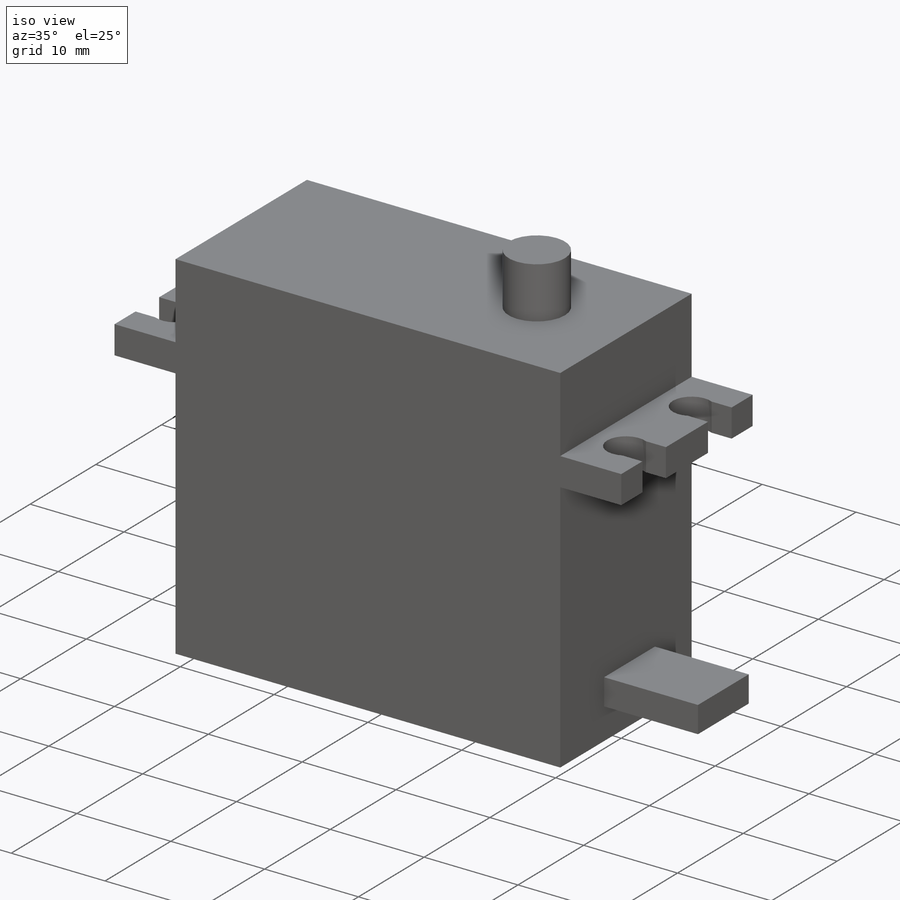
[diagram: iso view]
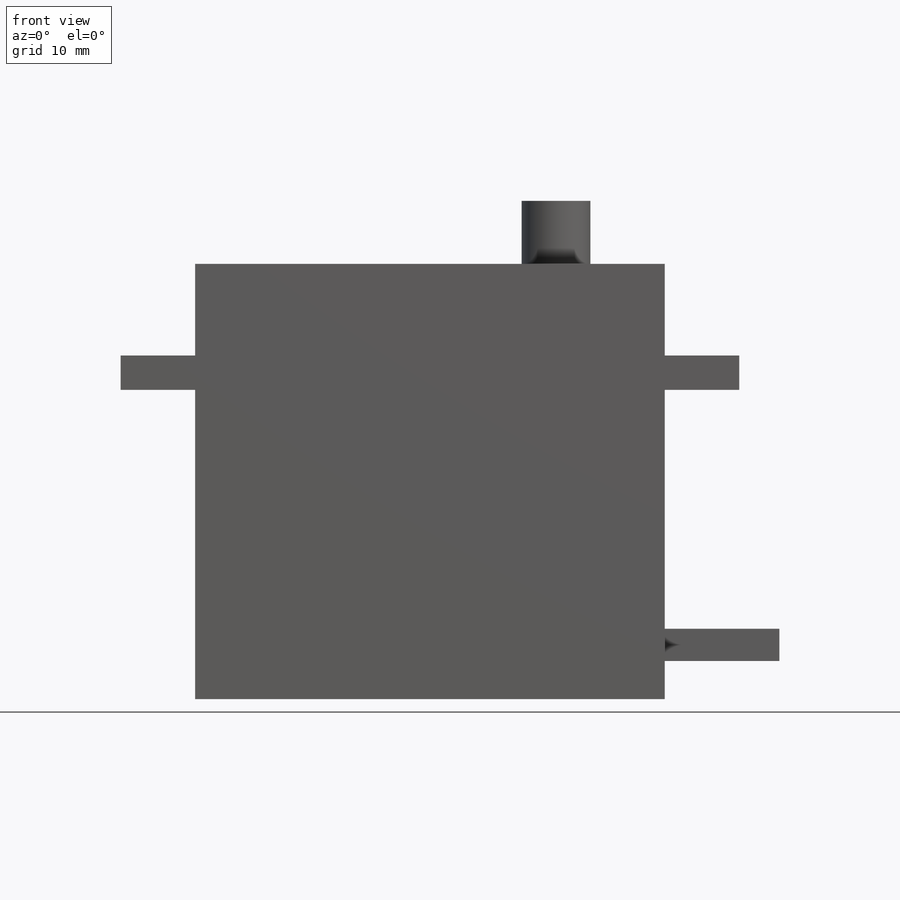
[diagram: front view]
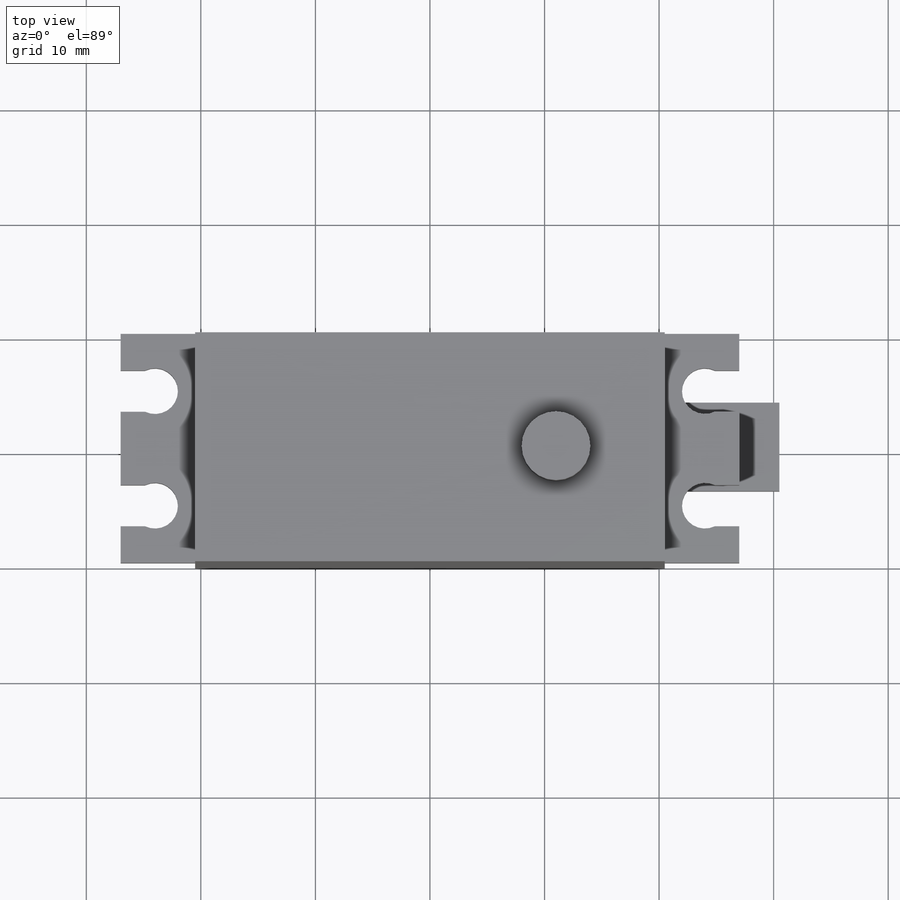
[diagram: top view]
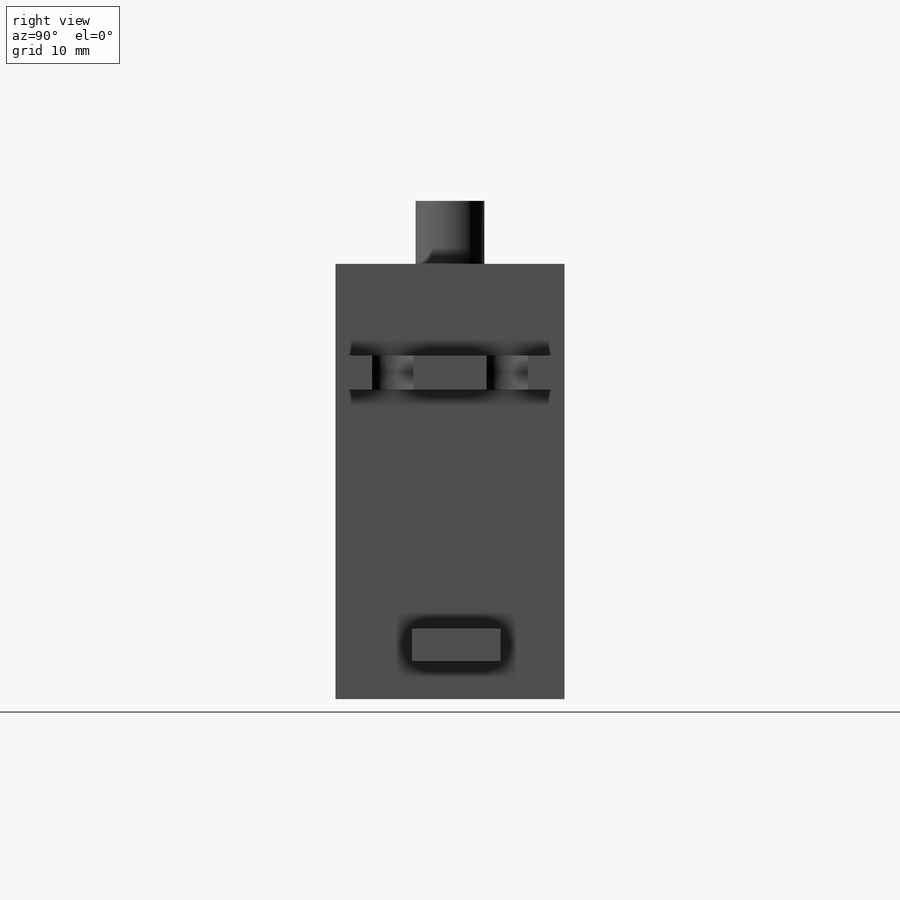
[diagram: right view]
SOLIDWORKS PART (.sldprt)
format: sldprt  version: not decoded by parser v0  size: 225,792 bytes
history: native  units: mm
features: sketch x6, plane x4, cut_extrude x4, extrude x2, material x1 (+10 scaffold rows collapsed)
feature tree (27):
  scaffold x10  (default folders/planes/origin — collapsed)
  material  "6061 合金"
  plane  "前基準面"
  plane  "上基準面"
  plane  "右基準面"
  sketch  "草圖1"  dims[D1=20.0mm D2=41.0mm]
  extrude  "伸長1"  Depth=38mm
  plane  "平面1"  Offset=11mm
  sketch  "草圖2"  dims[D1=54.0mm]
  extrude  "伸長2"  Depth=3mm
  sketch  "草圖3"  dims[c1.D2=2.0mm c1.D3=2.5mm c1.D4=2.5mm c1.D1=3.6mm c2.D3=10.0mm c2.D4=48.0mm]
  cut_extrude  "除料-伸長1"  [1 undecoded]
  sketch  "草圖4"  dims[c1.D1=~13.640378mm c1.D2=15.0mm c2.D1=35.0mm]
  cut_extrude  "伸長3"  Depth=3mm
  sketch  "草圖5"  dims[D1=6.0mm D2=16.0mm]
  cut_extrude  "伸長4"  Depth=5.5mm
  sketch  "草圖6"
  cut_extrude  "伸長5"  Depth=10mm
decode coverage: 10 of 12 modeling features carry decoded parameters
note: ~ marks probable driven/reference dimensions
note: 1 parameter value undecoded
note: suppression state not decoded; provenance and decode notes live in map.json
